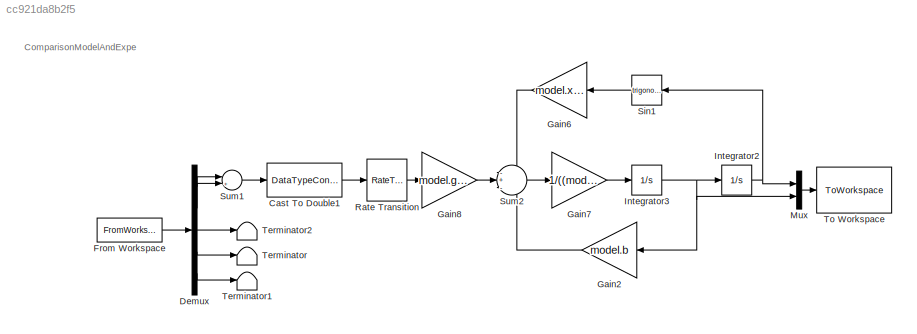
MODEL slx_cc921da8b2f5
KIND model
CONFIG AbsTol = auto
CONFIG EnableMultiTasking = off
CONFIG FixedStep = auto
CONFIG MaxStep = auto
CONFIG MinStep = auto
CONFIG RelTol = 1e-3
CONFIG SampleTimeConstraint = Unconstrained
CONFIG SolverName = VariableStepAuto
CONFIG StartTime = 0.0
CONFIG StopTime = tsim
BLOCK [DataTypeConversion] Cast To Double1
  OutDataTypeStr = double
  RndMeth = Floor
  SaturateOnIntegerOverflow = off
BLOCK [Demux] Demux
  Outputs = 5
BLOCK [FromWorkspace] From Workspace
  SampleTime = Ts_ensaio
  VariableName = Ensaio1
BLOCK [Gain] Gain2
  Gain = model.b
  NameLocation = top
BLOCK [Gain] Gain6
  Gain = model.x*model.g*model.M
  NameLocation = top
BLOCK [Gain] Gain7
  Gain = 1/((model.M*(2*model.L)^2)/12)
BLOCK [Gain] Gain8
  Gain = model.gain
BLOCK [Integrator] Integrator2
  WrapState = on
BLOCK [Integrator] Integrator3
BLOCK [Mux] Mux
  DisplayOption = bar
  Inputs = 2
BLOCK [RateTransition] Rate Transition
BLOCK [Trigonometry] Sin1
  NameLocation = top
BLOCK [Sum] Sum1
  Inputs = |+-
BLOCK [Sum] Sum2
  Inputs = -+-
BLOCK [Terminator] Terminator
BLOCK [Terminator] Terminator1
BLOCK [Terminator] Terminator2
BLOCK [ToWorkspace] To Workspace
  FixptAsFi = on
  MaxDataPoints = inf
  SampleTime = Ts_ensaio
  SaveFormat = Structure
  VariableName = ensaio_sim
ANNOTATION (root): ComparisonModelAndExpe
LINE Cast To Double1:1 -> Rate Transition:1
LINE Demux:1 -> Sum1:1
LINE Demux:2 -> Sum1:2
LINE Demux:3 -> Terminator2:1
LINE Demux:4 -> Terminator:1
LINE Demux:5 -> Terminator1:1
LINE From Workspace:1 -> Demux:1
LINE Gain2:1 -> Sum2:3
LINE Gain6:1 -> Sum2:1
LINE Gain7:1 -> Integrator3:1
LINE Gain8:1 -> Sum2:2
NET Integrator2:1 -> Mux:1, Sin1:1
NET Integrator3:1 -> Gain2:1, Integrator2:1, Mux:2
LINE Mux:1 -> To Workspace:1
LINE Rate Transition:1 -> Gain8:1
LINE Sin1:1 -> Gain6:1
LINE Sum1:1 -> Cast To Double1:1
LINE Sum2:1 -> Gain7:1
note: NET lines group one-source signal fan-out (src -> all destinations, sorted); 1:1 wires keep LINE
